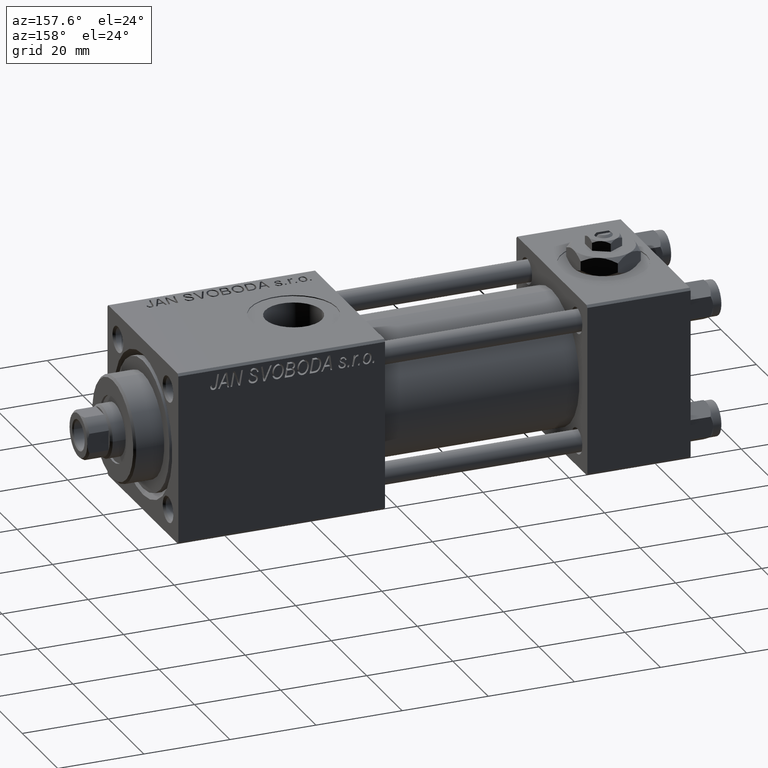
[diagram: clean part render]
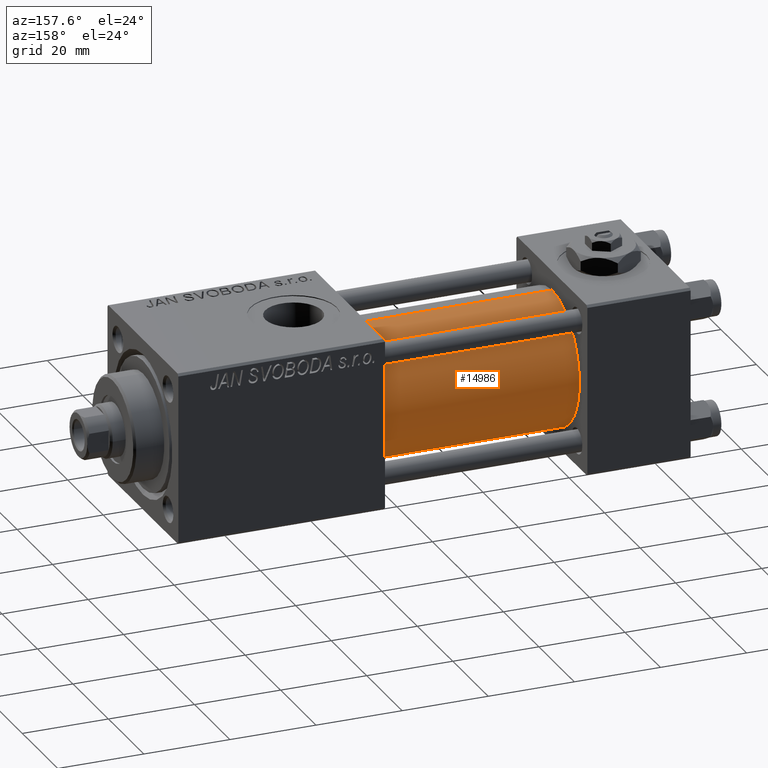
[diagram: same view with one face highlighted and labeled with its STEP entity id]
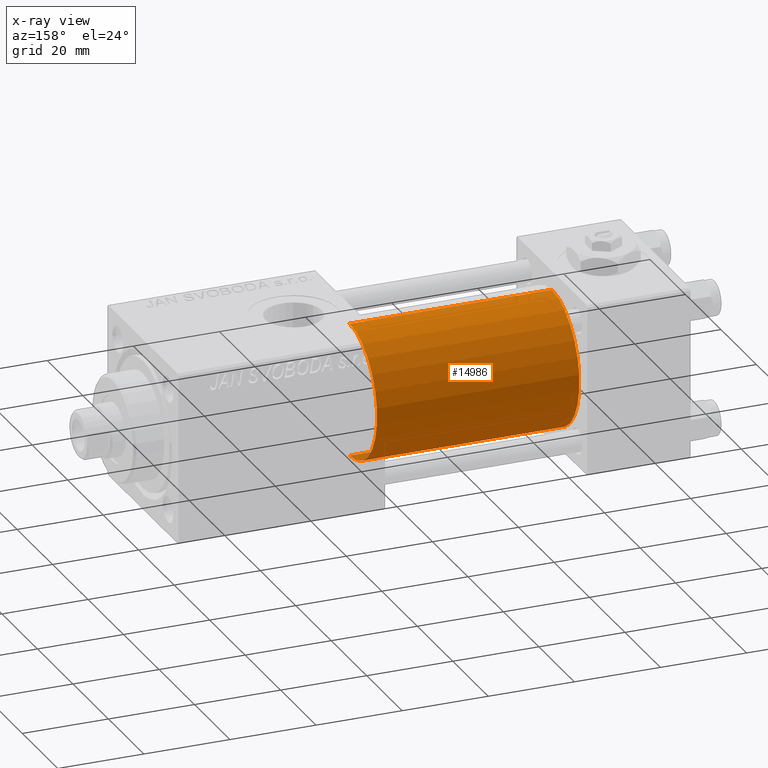
[diagram: x-ray of the same camera — body ghosted, the highlighted face saturated]
A machine part, auxiliary view. The second image highlights one B-rep face of the part: STEP entity #14986.
The next image is the same camera in x-ray: the body ghosted, the highlighted face saturated — about 0% of this face is hidden behind the body in this view.
In plain terms, the highlighted cylindrical surface (partial cylindrical patch) has radius 15.5 mm, axis along (-1, -0, -0).
Its self-contained STEP definition (entity closure, byte-faithful):
#41 = CARTESIAN_POINT ( 'NONE',  ( 71.00000000000001421, -2.602085213965210642E-15, 15.50000000000000000 ) ) ;
#3367 = VERTEX_POINT ( 'NONE', #41 ) ;
#3603 = EDGE_CURVE ( 'NONE', #33651, #3367, #34640, .T. ) ;
#3742 = EDGE_CURVE ( 'NONE', #33651, #24664, #50049, .T. ) ;
#5629 = DIRECTION ( 'NONE',  ( 1.000000000000000000, 0.000000000000000000, 0.000000000000000000 ) ) ;
#6734 = ORIENTED_EDGE ( 'NONE', *, *, #3603, .F. ) ;
#7816 = LINE ( 'NONE', #28395, #19740 ) ;
#8151 = DIRECTION ( 'NONE',  ( 0.000000000000000000, 0.000000000000000000, 1.000000000000000000 ) ) ;
#8357 = ORIENTED_EDGE ( 'NONE', *, *, #3742, .T. ) ;
#8374 = CARTESIAN_POINT ( 'NONE',  ( 24.00000000000000000, -2.602085213965210642E-15, 15.50000000000000000 ) ) ;
#8776 = AXIS2_PLACEMENT_3D ( 'NONE', #28459, #44266, #8151 ) ;
#14986 = ADVANCED_FACE ( 'NONE', ( #28197 ), #40826, .T. ) ;
#15223 = EDGE_CURVE ( 'NONE', #3367, #26497, #7816, .T. ) ;
#19740 = VECTOR ( 'NONE', #32072, 1000.000000000000000 ) ;
#21735 = DIRECTION ( 'NONE',  ( 0.000000000000000000, 0.000000000000000000, 1.000000000000000000 ) ) ;
#24664 = VERTEX_POINT ( 'NONE', #28456 ) ;
#25680 = CARTESIAN_POINT ( 'NONE',  ( 24.00000000000000000, -2.602085213965210642E-15, 0.000000000000000000 ) ) ;
#26497 = VERTEX_POINT ( 'NONE', #8374 ) ;
#28197 = FACE_OUTER_BOUND ( 'NONE', #40154, .T. ) ;
#28395 = CARTESIAN_POINT ( 'NONE',  ( 71.00000000000001421, -2.602085213965210642E-15, 15.50000000000000000 ) ) ;
#28456 = CARTESIAN_POINT ( 'NONE',  ( 24.00000000000000000, -7.038826752868131828E-16, -15.50000000000000000 ) ) ;
#28459 = CARTESIAN_POINT ( 'NONE',  ( 71.00000000000001421, -2.602085213965210642E-15, 0.000000000000000000 ) ) ;
#29140 = AXIS2_PLACEMENT_3D ( 'NONE', #25680, #5629, #21735 ) ;
#30019 = CARTESIAN_POINT ( 'NONE',  ( 71.00000000000001421, -7.038826752868131828E-16, -15.50000000000000000 ) ) ;
#30803 = CIRCLE ( 'NONE', #29140, 15.50000000000000000 ) ;
#31261 = AXIS2_PLACEMENT_3D ( 'NONE', #39807, #47454, #46938 ) ;
#32072 = DIRECTION ( 'NONE',  ( -1.000000000000000000, -0.000000000000000000, -0.000000000000000000 ) ) ;
#33651 = VERTEX_POINT ( 'NONE', #45482 ) ;
#34640 = CIRCLE ( 'NONE', #31261, 15.50000000000000000 ) ;
#37993 = VECTOR ( 'NONE', #46091, 1000.000000000000000 ) ;
#39807 = CARTESIAN_POINT ( 'NONE',  ( 71.00000000000001421, -2.602085213965210642E-15, 0.000000000000000000 ) ) ;
#40154 = EDGE_LOOP ( 'NONE', ( #6734, #8357, #44639, #41173 ) ) ;
#40826 = CYLINDRICAL_SURFACE ( 'NONE', #8776, 15.50000000000000000 ) ;
#41173 = ORIENTED_EDGE ( 'NONE', *, *, #15223, .F. ) ;
#44266 = DIRECTION ( 'NONE',  ( -1.000000000000000000, -0.000000000000000000, -0.000000000000000000 ) ) ;
#44639 = ORIENTED_EDGE ( 'NONE', *, *, #48186, .T. ) ;
#45482 = CARTESIAN_POINT ( 'NONE',  ( 71.00000000000001421, -7.038826752868131828E-16, -15.50000000000000000 ) ) ;
#46091 = DIRECTION ( 'NONE',  ( -1.000000000000000000, -0.000000000000000000, -0.000000000000000000 ) ) ;
#46938 = DIRECTION ( 'NONE',  ( 0.000000000000000000, 0.000000000000000000, -1.000000000000000000 ) ) ;
#47454 = DIRECTION ( 'NONE',  ( 1.000000000000000000, 0.000000000000000000, 0.000000000000000000 ) ) ;
#48186 = EDGE_CURVE ( 'NONE', #24664, #26497, #30803, .T. ) ;
#50049 = LINE ( 'NONE', #30019, #37993 ) ;